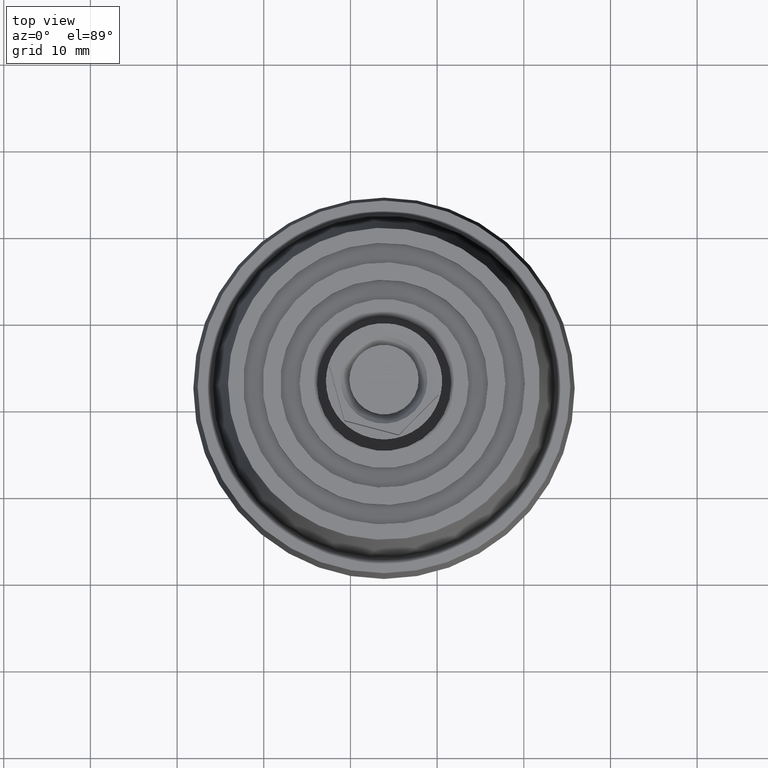
[diagram: clean part render]
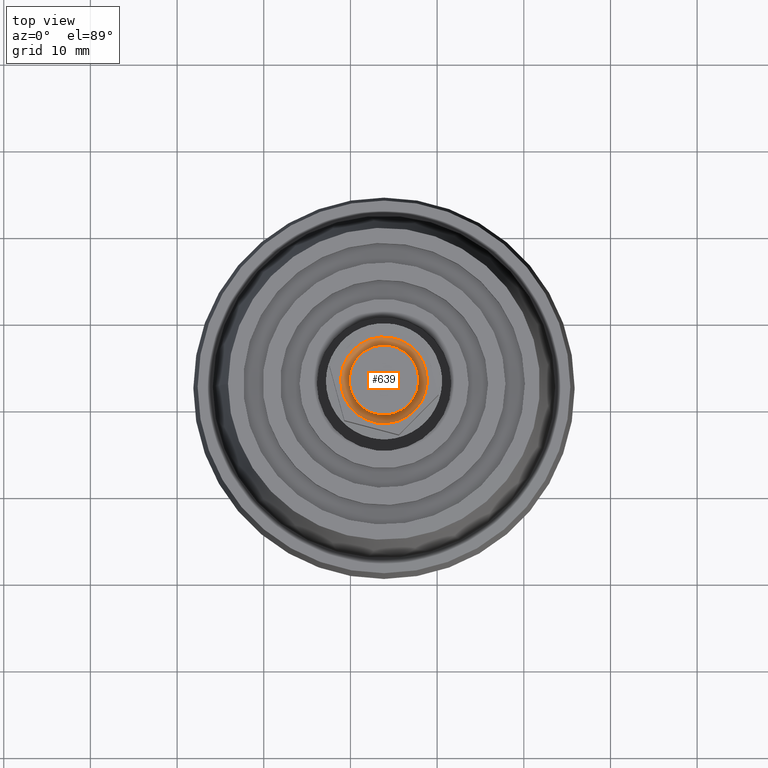
[diagram: same view with one face highlighted and labeled with its STEP entity id]
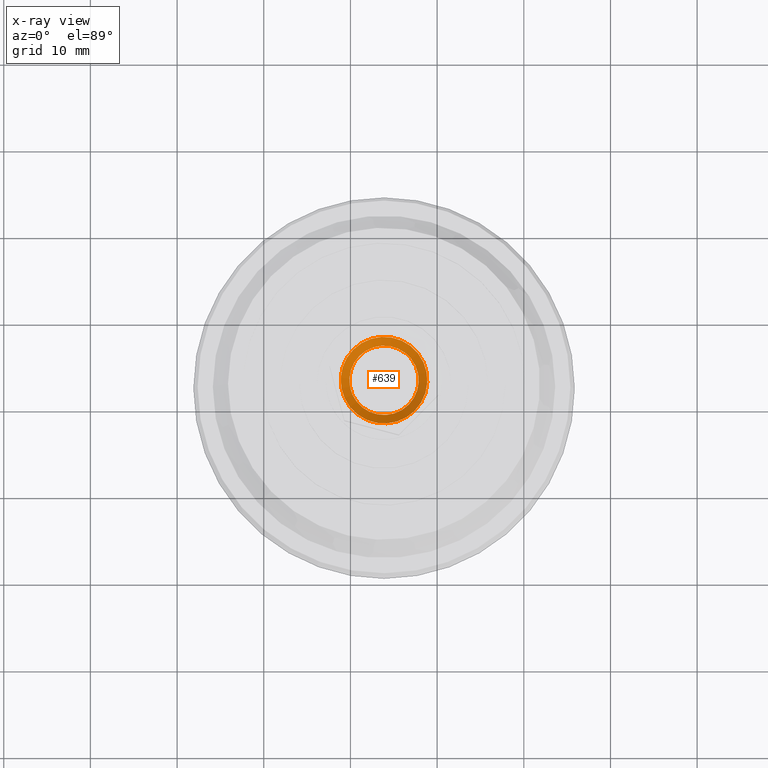
[diagram: x-ray of the same camera — body ghosted, the highlighted face saturated]
A machine part, top view. The second image highlights one B-rep face of the part: STEP entity #639.
The next image is the same camera in x-ray: the body ghosted, the highlighted face saturated — about 0% of this face is hidden behind the body in this view.
In plain terms, the highlighted conical surface has half-angle 45 deg.
Its self-contained STEP definition (entity closure, byte-faithful):
#96=CONICAL_SURFACE('',#729,4.5,45.);
#158=FACE_BOUND('',#281,.T.);
#196=FACE_OUTER_BOUND('',#280,.T.);
#280=EDGE_LOOP('',(#529));
#281=EDGE_LOOP('',(#530));
#330=CIRCLE('',#727,4.);
#331=CIRCLE('',#730,5.);
#366=VERTEX_POINT('',#1060);
#373=VERTEX_POINT('',#1076);
#422=EDGE_CURVE('',#366,#366,#330,.T.);
#429=EDGE_CURVE('',#373,#373,#331,.T.);
#529=ORIENTED_EDGE('',*,*,#422,.T.);
#530=ORIENTED_EDGE('',*,*,#429,.T.);
#639=ADVANCED_FACE('',(#196,#158),#96,.F.);
#727=AXIS2_PLACEMENT_3D('',#1061,#889,#890);
#729=AXIS2_PLACEMENT_3D('',#1075,#899,#900);
#730=AXIS2_PLACEMENT_3D('',#1077,#901,#902);
#889=DIRECTION('center_axis',(0.,-1.,0.));
#890=DIRECTION('ref_axis',(-1.,0.,0.));
#899=DIRECTION('center_axis',(0.,1.,0.));
#900=DIRECTION('ref_axis',(-1.,0.,0.));
#901=DIRECTION('center_axis',(0.,1.,0.));
#902=DIRECTION('ref_axis',(-1.,0.,0.));
#1060=CARTESIAN_POINT('',(4.,5.,4.89858719658941E-16));
#1061=CARTESIAN_POINT('Origin',(0.,5.,0.));
#1075=CARTESIAN_POINT('Origin',(0.,5.5,0.));
#1076=CARTESIAN_POINT('',(5.,6.,-6.12323399573677E-16));
#1077=CARTESIAN_POINT('Origin',(0.,6.,0.));